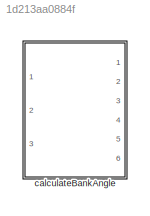
MODEL slx_1d213aa0884f
KIND library
CONFIG AbsTol = auto
CONFIG EnableMultiTasking = off
CONFIG FixedStep = auto
CONFIG MaxStep = auto
CONFIG MinStep = auto
CONFIG RelTol = 1e-3
CONFIG SampleTimeConstraint = Unconstrained
CONFIG Solver = VariableStepAuto
CONFIG SolverName = VariableStepAuto
CONFIG StartTime = 0.0
CONFIG StopTime = 10.0
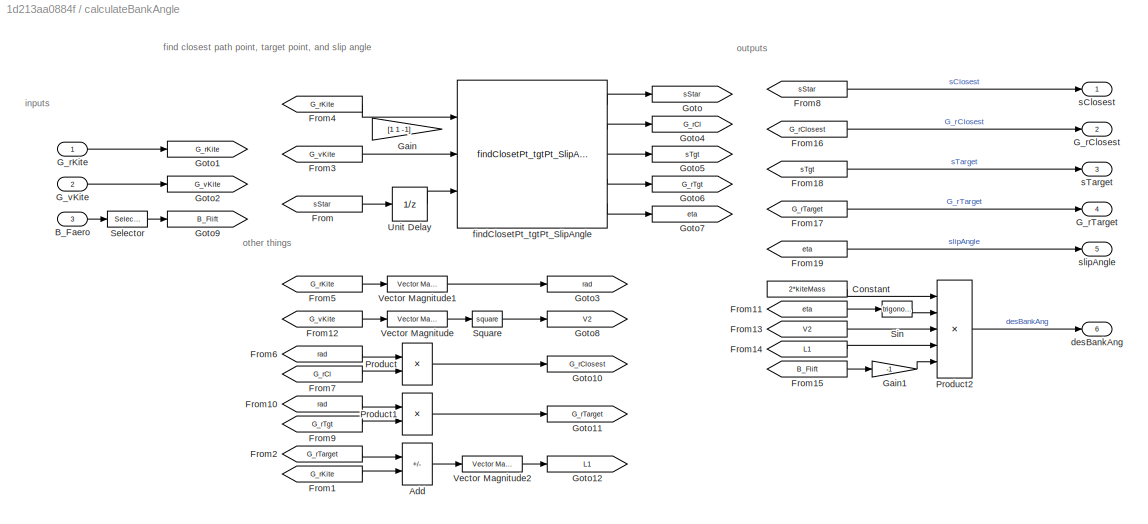
BLOCK [SubSystem] calculateBankAngle
  Ports = [3, 6]
  RequestExecContextInheritance = off
BLOCK [Sum] calculateBankAngle/Add
  IconShape = rectangular
  Inputs = +-
  Ports = [2, 1]
BLOCK [Inport] calculateBankAngle/B_Faero
  Port = 3
BLOCK [Constant] calculateBankAngle/Constant
  Value = 2*kiteMass
BLOCK [From] calculateBankAngle/From
  GotoTag = sStar
BLOCK [From] calculateBankAngle/From1
  GotoTag = G_rKite
BLOCK [From] calculateBankAngle/From10
  GotoTag = rad
BLOCK [From] calculateBankAngle/From11
  GotoTag = eta
BLOCK [From] calculateBankAngle/From12
  GotoTag = G_vKite
BLOCK [From] calculateBankAngle/From13
  GotoTag = V2
BLOCK [From] calculateBankAngle/From14
  GotoTag = L1
BLOCK [From] calculateBankAngle/From15
  GotoTag = B_Flift
BLOCK [From] calculateBankAngle/From16
  GotoTag = G_rClosest
BLOCK [From] calculateBankAngle/From17
  GotoTag = G_rTarget
BLOCK [From] calculateBankAngle/From18
  GotoTag = sTgt
BLOCK [From] calculateBankAngle/From19
  GotoTag = eta
BLOCK [From] calculateBankAngle/From2
  GotoTag = G_rTarget
BLOCK [From] calculateBankAngle/From3
  GotoTag = G_vKite
BLOCK [From] calculateBankAngle/From4
  GotoTag = G_rKite
BLOCK [From] calculateBankAngle/From5
  GotoTag = G_rKite
BLOCK [From] calculateBankAngle/From6
  GotoTag = rad
BLOCK [From] calculateBankAngle/From7
  GotoTag = G_rCl
BLOCK [From] calculateBankAngle/From8
  GotoTag = sStar
BLOCK [From] calculateBankAngle/From9
  GotoTag = G_rTgt
BLOCK [Outport] calculateBankAngle/G_rClosest
  Port = 2
BLOCK [Inport] calculateBankAngle/G_rKite
BLOCK [Outport] calculateBankAngle/G_rTarget
  Port = 4
BLOCK [Inport] calculateBankAngle/G_vKite
  Port = 2
BLOCK [Gain] calculateBankAngle/Gain
  Commented = on
  Gain = [1 1 -1]
BLOCK [Gain] calculateBankAngle/Gain1
  Gain = -1
BLOCK [Goto] calculateBankAngle/Goto
  GotoTag = sStar
BLOCK [Goto] calculateBankAngle/Goto1
  GotoTag = G_rKite
BLOCK [Goto] calculateBankAngle/Goto10
  GotoTag = G_rClosest
BLOCK [Goto] calculateBankAngle/Goto11
  GotoTag = G_rTarget
BLOCK [Goto] calculateBankAngle/Goto12
  GotoTag = L1
BLOCK [Goto] calculateBankAngle/Goto2
  GotoTag = G_vKite
BLOCK [Goto] calculateBankAngle/Goto3
  GotoTag = rad
BLOCK [Goto] calculateBankAngle/Goto4
  GotoTag = G_rCl
BLOCK [Goto] calculateBankAngle/Goto5
  GotoTag = sTgt
BLOCK [Goto] calculateBankAngle/Goto6
  GotoTag = G_rTgt
BLOCK [Goto] calculateBankAngle/Goto7
  GotoTag = eta
BLOCK [Goto] calculateBankAngle/Goto8
  GotoTag = V2
BLOCK [Goto] calculateBankAngle/Goto9
  GotoTag = B_Flift
BLOCK [Product] calculateBankAngle/Product
  Ports = [2, 1]
BLOCK [Product] calculateBankAngle/Product1
  Ports = [2, 1]
BLOCK [Product] calculateBankAngle/Product2
  Inputs = ***//
  Ports = [5, 1]
BLOCK [Selector] calculateBankAngle/Selector
  IndexOptions = Index vector (dialog)
  Indices = 3
  InputPortWidth = 3
  OutputSizes = 1
  Ports = [1, 1]
BLOCK [Trigonometry] calculateBankAngle/Sin
  Ports = [1, 1]
BLOCK [Math] calculateBankAngle/Square
  Operator = square
  Ports = [1, 1]
BLOCK [UnitDelay] calculateBankAngle/Unit Delay
  HasFrameUpgradeWarning = on
  InitialCondition = initialPathParam
  SampleTime = -1
BLOCK [Reference] calculateBankAngle/Vector Magnitude  REF=VectorMagnitude_ul/Vector Magnitude
  Ports = [1, 1]
  SourceBlock = VectorMagnitude_ul/Vector Magnitude
  SourceType = SubSystem
BLOCK [Reference] calculateBankAngle/Vector Magnitude1  REF=VectorMagnitude_ul/Vector Magnitude
  Ports = [1, 1]
  SourceBlock = VectorMagnitude_ul/Vector Magnitude
  SourceType = SubSystem
BLOCK [Reference] calculateBankAngle/Vector Magnitude2  REF=VectorMagnitude_ul/Vector Magnitude
  Ports = [1, 1]
  SourceBlock = VectorMagnitude_ul/Vector Magnitude
  SourceType = SubSystem
BLOCK [Outport] calculateBankAngle/desBankAng
  Port = 6
BLOCK [Reference] calculateBankAngle/findClosetPt_tgtPt_SlipAngle  REF=findClosetPt_tgtPt_SlipAngle/findClosetPt_tgtPt_SlipAngle
  Ports = [3, 5]
  SourceBlock = findClosetPt_tgtPt_SlipAngle/findClosetPt_tgtPt_SlipAngle
BLOCK [Outport] calculateBankAngle/sClosest
BLOCK [Outport] calculateBankAngle/sTarget
  Port = 3
BLOCK [Outport] calculateBankAngle/slipAngle
  Port = 5
ANNOTATION calculateBankAngle: find closest path point, target point, and slip angle
ANNOTATION calculateBankAngle: inputs
ANNOTATION calculateBankAngle: other things
ANNOTATION calculateBankAngle: outputs
LINE calculateBankAngle/Add:1 -> calculateBankAngle/Vector Magnitude2:1
LINE calculateBankAngle/B_Faero:1 -> calculateBankAngle/Selector:1
LINE calculateBankAngle/Constant:1 -> calculateBankAngle/Product2:1
LINE calculateBankAngle/From10:1 -> calculateBankAngle/Product1:1
LINE calculateBankAngle/From11:1 -> calculateBankAngle/Sin:1
LINE calculateBankAngle/From12:1 -> calculateBankAngle/Vector Magnitude:1
LINE calculateBankAngle/From13:1 -> calculateBankAngle/Product2:3
LINE calculateBankAngle/From14:1 -> calculateBankAngle/Product2:4
LINE calculateBankAngle/From15:1 -> calculateBankAngle/Gain1:1
LINE calculateBankAngle/From16:1 -> calculateBankAngle/G_rClosest:1
LINE calculateBankAngle/From17:1 -> calculateBankAngle/G_rTarget:1
LINE calculateBankAngle/From18:1 -> calculateBankAngle/sTarget:1
LINE calculateBankAngle/From19:1 -> calculateBankAngle/slipAngle:1
LINE calculateBankAngle/From1:1 -> calculateBankAngle/Add:2
LINE calculateBankAngle/From2:1 -> calculateBankAngle/Add:1
LINE calculateBankAngle/From3:1 -> calculateBankAngle/findClosetPt_tgtPt_SlipAngle:2
LINE calculateBankAngle/From4:1 -> calculateBankAngle/findClosetPt_tgtPt_SlipAngle:1
LINE calculateBankAngle/From5:1 -> calculateBankAngle/Vector Magnitude1:1
LINE calculateBankAngle/From6:1 -> calculateBankAngle/Product:1
LINE calculateBankAngle/From7:1 -> calculateBankAngle/Product:2
LINE calculateBankAngle/From8:1 -> calculateBankAngle/sClosest:1
LINE calculateBankAngle/From9:1 -> calculateBankAngle/Product1:2
LINE calculateBankAngle/From:1 -> calculateBankAngle/Unit Delay:1
LINE calculateBankAngle/G_rKite:1 -> calculateBankAngle/Goto1:1
LINE calculateBankAngle/G_vKite:1 -> calculateBankAngle/Goto2:1
LINE calculateBankAngle/Gain1:1 -> calculateBankAngle/Product2:5
LINE calculateBankAngle/Product1:1 -> calculateBankAngle/Goto11:1
LINE calculateBankAngle/Product2:1 -> calculateBankAngle/desBankAng:1
LINE calculateBankAngle/Product:1 -> calculateBankAngle/Goto10:1
LINE calculateBankAngle/Selector:1 -> calculateBankAngle/Goto9:1
LINE calculateBankAngle/Sin:1 -> calculateBankAngle/Product2:2
LINE calculateBankAngle/Square:1 -> calculateBankAngle/Goto8:1
LINE calculateBankAngle/Unit Delay:1 -> calculateBankAngle/findClosetPt_tgtPt_SlipAngle:3
LINE calculateBankAngle/Vector Magnitude1:1 -> calculateBankAngle/Goto3:1
LINE calculateBankAngle/Vector Magnitude2:1 -> calculateBankAngle/Goto12:1
LINE calculateBankAngle/Vector Magnitude:1 -> calculateBankAngle/Square:1
LINE calculateBankAngle/findClosetPt_tgtPt_SlipAngle:1 -> calculateBankAngle/Goto:1
LINE calculateBankAngle/findClosetPt_tgtPt_SlipAngle:2 -> calculateBankAngle/Goto4:1
LINE calculateBankAngle/findClosetPt_tgtPt_SlipAngle:3 -> calculateBankAngle/Goto5:1
LINE calculateBankAngle/findClosetPt_tgtPt_SlipAngle:4 -> calculateBankAngle/Goto6:1
LINE calculateBankAngle/findClosetPt_tgtPt_SlipAngle:5 -> calculateBankAngle/Goto7:1
